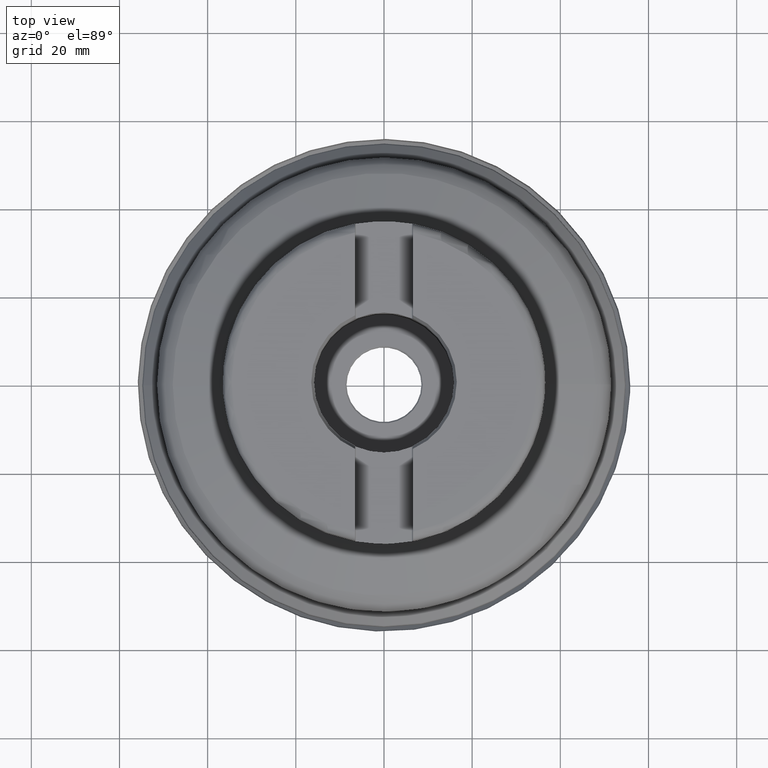
[diagram: clean part render]
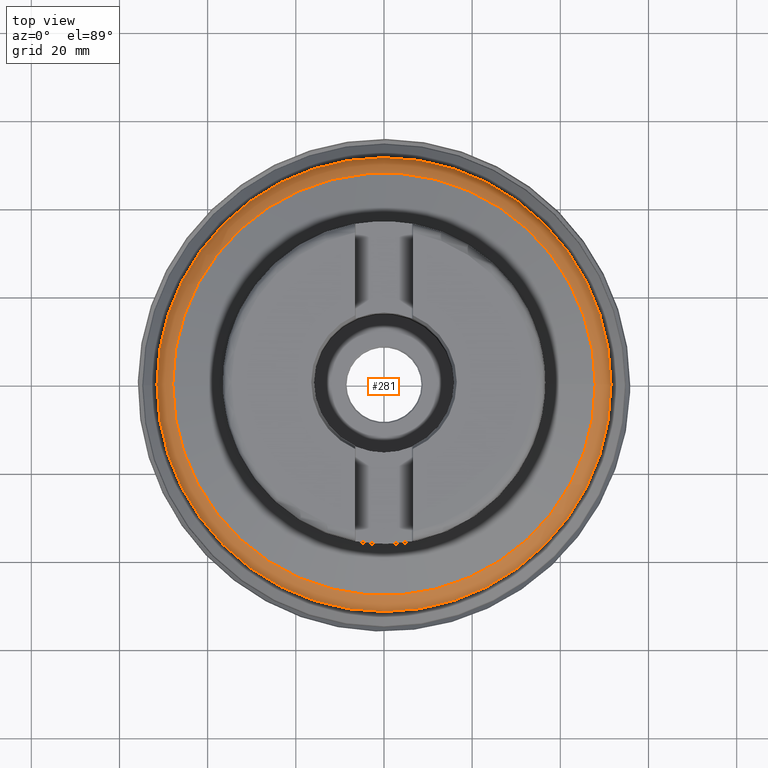
[diagram: same view with one face highlighted and labeled with its STEP entity id]
A machine part, top view. The second image highlights one B-rep face of the part: STEP entity #281.
In plain terms, the highlighted toroidal blend (fillet) surface has major radius 46.4895 mm and minor (blend) radius 5 mm.
Its self-contained STEP definition (entity closure, byte-faithful):
#281=ADVANCED_FACE('',(#374,#375),#333,.T.);
#333=TOROIDAL_SURFACE('',#1072,46.4894978657299,5.);
#374=FACE_BOUND('',#478,.T.);
#375=FACE_BOUND('',#479,.T.);
#478=EDGE_LOOP('',(#617));
#479=EDGE_LOOP('',(#618));
#617=ORIENTED_EDGE('',*,*,#869,.F.);
#618=ORIENTED_EDGE('',*,*,#870,.F.);
#784=VERTEX_POINT('',#1812);
#785=VERTEX_POINT('',#1815);
#869=EDGE_CURVE('',#784,#784,#946,.T.);
#870=EDGE_CURVE('',#785,#785,#947,.T.);
#946=CIRCLE('',#1058,51.4894978657299);
#947=CIRCLE('',#1060,47.9204957139575);
#1058=AXIS2_PLACEMENT_3D('',#1811,#1201,#1202);
#1060=AXIS2_PLACEMENT_3D('',#1814,#1205,#1206);
#1072=AXIS2_PLACEMENT_3D('',#1832,#1229,#1230);
#1201=DIRECTION('',(-1.17145536458253E-15,-1.33226762955019E-15,-1.));
#1202=DIRECTION('',(1.,-3.1641356201817E-15,-1.14548792720831E-15));
#1205=DIRECTION('',(1.17145536458253E-15,1.33226762955019E-15,1.));
#1206=DIRECTION('',(-1.,3.1641356201817E-15,1.15840102244788E-15));
#1229=DIRECTION('',(-1.17145536458253E-15,-1.33226762955019E-15,-1.));
#1230=DIRECTION('',(1.,-3.1641356201817E-15,-1.14548792720831E-15));
#1811=CARTESIAN_POINT('',(2.14085683343057E-14,2.43474428895318E-14,18.2751891207866));
#1812=CARTESIAN_POINT('',(51.4894978657299,-1.38572311372694E-13,18.2751891207866));
#1814=CARTESIAN_POINT('',(2.70208354432647E-14,3.07301374622095E-14,23.0660392706418));
#1815=CARTESIAN_POINT('',(-47.9204957139575,1.82357084887507E-13,23.0660392706419));
#1832=CARTESIAN_POINT('',(2.14085683343057E-14,2.43474428895318E-14,18.2751891207866));